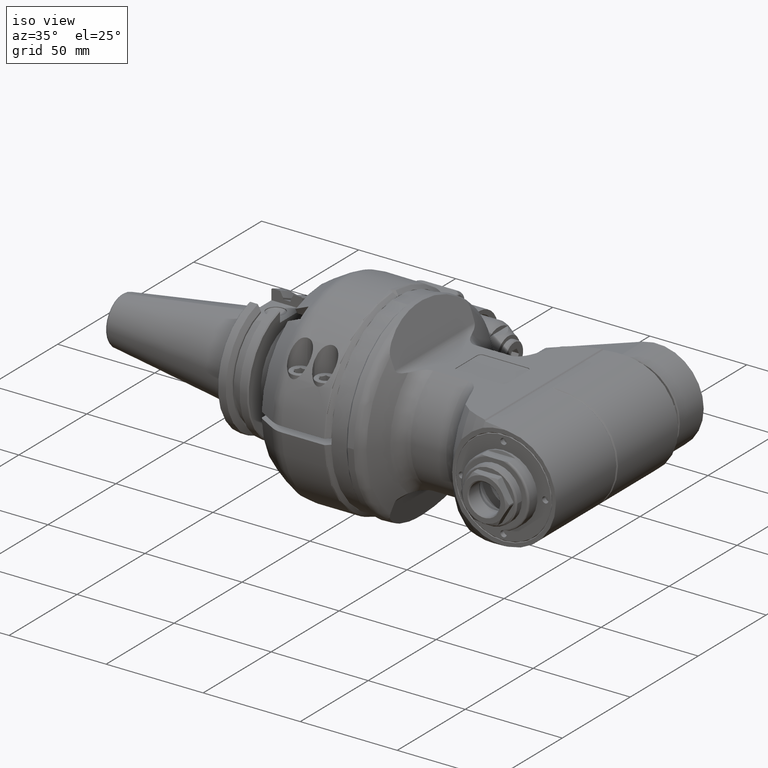
[diagram: clean part render]
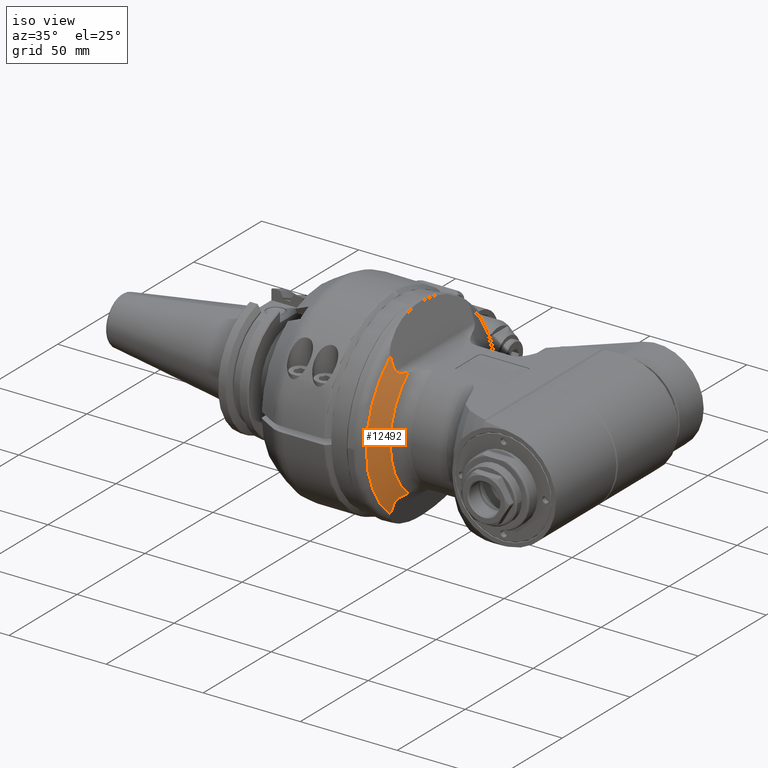
[diagram: same view with one face highlighted and labeled with its STEP entity id]
A machine part, iso view. The second image highlights one B-rep face of the part: STEP entity #12492.
In plain terms, the highlighted conical surface has half-angle 65 deg.
Its self-contained STEP definition (entity closure, byte-faithful):
#213=ELLIPSE('',#13765,50.3672702559045,29.5863002294676);
#214=ELLIPSE('',#13768,44.9208951940129,23.558427704057);
#369=B_SPLINE_CURVE_WITH_KNOTS('',3,(#19763,#19764,#19765,#19766,#19767,
#19768,#19769,#19770,#19771,#19772,#19773,#19774,#19775,#19776,#19777,#19778),
 .UNSPECIFIED.,.F.,.F.,(4,2,2,2,2,2,2,4),(2.25250406855334,2.48751389861986,
2.67700293318261,2.77174745046398,2.86649196774536,2.91208919967704,2.95768643160872,
2.96280115665204),.UNSPECIFIED.);
#376=B_SPLINE_CURVE_WITH_KNOTS('',3,(#19929,#19930,#19931,#19932,#19933,
#19934,#19935,#19936,#19937,#19938,#19939,#19940,#19941,#19942,#19943,#19944),
 .UNSPECIFIED.,.F.,.F.,(4,2,2,2,2,2,2,4),(-9.59514006222091,-9.36013023215302,
-9.17064119759027,-9.0758966803089,-8.98115216302752,-8.93555493109584,
-8.88995769916416,-8.88484297412084),.UNSPECIFIED.);
#689=CONICAL_SURFACE('',#13766,41.86607263336,1.13446401379631);
#1188=CIRCLE('',#13751,36.61905390607);
#1195=CIRCLE('',#13767,47.1130913087);
#1925=FACE_OUTER_BOUND('',#2716,.T.);
#2716=EDGE_LOOP('',(#8729,#8730,#8731,#8732,#8733,#8734));
#5386=VERTEX_POINT('',#19760);
#5387=VERTEX_POINT('',#19762);
#5390=VERTEX_POINT('',#19799);
#5417=VERTEX_POINT('',#19928);
#5423=VERTEX_POINT('',#19991);
#5424=VERTEX_POINT('',#20012);
#6676=EDGE_CURVE('',#5387,#5386,#369,.T.);
#6680=EDGE_CURVE('',#5387,#5390,#1188,.T.);
#6710=EDGE_CURVE('',#5390,#5417,#376,.T.);
#6719=EDGE_CURVE('',#5423,#5386,#213,.T.);
#6720=EDGE_CURVE('',#5424,#5423,#1195,.T.);
#6721=EDGE_CURVE('',#5417,#5424,#214,.T.);
#8729=ORIENTED_EDGE('',*,*,#6710,.F.);
#8730=ORIENTED_EDGE('',*,*,#6680,.F.);
#8731=ORIENTED_EDGE('',*,*,#6676,.T.);
#8732=ORIENTED_EDGE('',*,*,#6719,.F.);
#8733=ORIENTED_EDGE('',*,*,#6720,.F.);
#8734=ORIENTED_EDGE('',*,*,#6721,.F.);
#12492=ADVANCED_FACE('',(#1925),#689,.T.);
#13751=AXIS2_PLACEMENT_3D('',#19800,#15580,#15581);
#13765=AXIS2_PLACEMENT_3D('',#20010,#15618,#15619);
#13766=AXIS2_PLACEMENT_3D('',#20011,#15620,#15621);
#13767=AXIS2_PLACEMENT_3D('',#20013,#15622,#15623);
#13768=AXIS2_PLACEMENT_3D('',#20014,#15624,#15625);
#15580=DIRECTION('center_axis',(1.,0.,0.));
#15581=DIRECTION('ref_axis',(0.,-0.63979758777558,0.768543457897176));
#15618=DIRECTION('center_axis',(0.939692620785897,0.,0.342020143325699));
#15619=DIRECTION('ref_axis',(0.342020143325699,5.0532154980743E-16,-0.939692620785897));
#15620=DIRECTION('center_axis',(-1.,0.,0.));
#15621=DIRECTION('ref_axis',(0.,-1.,0.));
#15622=DIRECTION('center_axis',(-1.,0.,0.));
#15623=DIRECTION('ref_axis',(0.,-0.627973893110831,-0.778234405286239));
#15624=DIRECTION('center_axis',(0.939692432057668,1.34679941261331E-5,-0.342020661586632));
#15625=DIRECTION('ref_axis',(0.34199759712448,0.0115763001167939,0.939629518925777));
#19760=CARTESIAN_POINT('',(23.04205971778,-29.32212693045,30.6319194267));
#19762=CARTESIAN_POINT('',(25.73963757672,-23.42878235573,28.1433343139));
#19763=CARTESIAN_POINT('Ctrl Pts',(25.7396375767153,-23.4287823557284,28.143334313901));
#19764=CARTESIAN_POINT('Ctrl Pts',(25.4826199044862,-24.2053160941123,28.2140547963745));
#19765=CARTESIAN_POINT('Ctrl Pts',(25.2048774886938,-24.9916302315643,28.3175745009361));
#19766=CARTESIAN_POINT('Ctrl Pts',(24.6829488590406,-26.3520915975768,28.596420756611));
#19767=CARTESIAN_POINT('Ctrl Pts',(24.4446386638938,-26.9342653049187,28.7518069050935));
#19768=CARTESIAN_POINT('Ctrl Pts',(24.0797213060657,-27.7424335272405,29.0638111388049));
#19769=CARTESIAN_POINT('Ctrl Pts',(23.9571216555152,-28.000330680078,29.1807555298381));
#19770=CARTESIAN_POINT('Ctrl Pts',(23.7070096664026,-28.4859175959247,29.4577382988404));
#19771=CARTESIAN_POINT('Ctrl Pts',(23.5797693822815,-28.7149196194472,29.6157163221684));
#19772=CARTESIAN_POINT('Ctrl Pts',(23.3820660952746,-29.0100510435198,29.9201061184461));
#19773=CARTESIAN_POINT('Ctrl Pts',(23.3117990365375,-29.104630645834,30.0383141688464));
#19774=CARTESIAN_POINT('Ctrl Pts',(23.1773919197054,-29.2493467322843,30.299339809073));
#19775=CARTESIAN_POINT('Ctrl Pts',(23.1133495043162,-29.2986325774412,30.4426783205164));
#19776=CARTESIAN_POINT('Ctrl Pts',(23.0539377860213,-29.3190340016249,30.5996130290236));
#19777=CARTESIAN_POINT('Ctrl Pts',(23.0479744620129,-29.3207602586447,30.6156688004655));
#19778=CARTESIAN_POINT('Ctrl Pts',(23.0420597177759,-29.3221269304506,30.6319194266985));
#19799=CARTESIAN_POINT('',(25.73963757673,-23.42878235572,-28.14333431388));
#19800=CARTESIAN_POINT('Origin',(25.73963757672,0.,0.));
#19928=CARTESIAN_POINT('',(23.04205971778,-29.32212693045,-30.6319194267));
#19929=CARTESIAN_POINT('Ctrl Pts',(25.7396375767198,-23.4287823557148,-28.1433343138998));
#19930=CARTESIAN_POINT('Ctrl Pts',(25.4826199044894,-24.2053160941032,-28.2140547963733));
#19931=CARTESIAN_POINT('Ctrl Pts',(25.2048774886955,-24.9916302315599,-28.3175745009352));
#19932=CARTESIAN_POINT('Ctrl Pts',(24.6829488590406,-26.3520915975768,-28.596420756611));
#19933=CARTESIAN_POINT('Ctrl Pts',(24.4446386638938,-26.9342653049187,-28.7518069050935));
#19934=CARTESIAN_POINT('Ctrl Pts',(24.0797213060657,-27.7424335272405,-29.0638111388049));
#19935=CARTESIAN_POINT('Ctrl Pts',(23.9571216555152,-28.000330680078,-29.1807555298381));
#19936=CARTESIAN_POINT('Ctrl Pts',(23.7070096664026,-28.4859175959247,-29.4577382988404));
#19937=CARTESIAN_POINT('Ctrl Pts',(23.5797693822815,-28.7149196194472,-29.6157163221684));
#19938=CARTESIAN_POINT('Ctrl Pts',(23.3820660952746,-29.0100510435198,-29.9201061184461));
#19939=CARTESIAN_POINT('Ctrl Pts',(23.3117990365375,-29.1046306458341,-30.0383141688464));
#19940=CARTESIAN_POINT('Ctrl Pts',(23.1773919197054,-29.2493467322843,-30.299339809073));
#19941=CARTESIAN_POINT('Ctrl Pts',(23.1133495043162,-29.2986325774412,-30.4426783205164));
#19942=CARTESIAN_POINT('Ctrl Pts',(23.0539377860213,-29.3190340016249,-30.5996130290236));
#19943=CARTESIAN_POINT('Ctrl Pts',(23.0479744620129,-29.3207602586447,-30.6156688004655));
#19944=CARTESIAN_POINT('Ctrl Pts',(23.0420597177759,-29.3221269304506,-30.6319194266985));
#19991=CARTESIAN_POINT('',(20.8461875691295,-29.5857914006852,36.6650285724184));
#20010=CARTESIAN_POINT('Origin',(20.7451569433855,0.,36.9426079340147));
#20011=CARTESIAN_POINT('Origin',(23.2929125617,0.,0.));
#20012=CARTESIAN_POINT('',(20.8461875679307,-29.5857913818389,-36.6650285909294));
#20013=CARTESIAN_POINT('Origin',(20.84618757091,0.,0.));
#20014=CARTESIAN_POINT('Origin',(20.9910446210664,-6.02370894456815,-36.2661099826683));